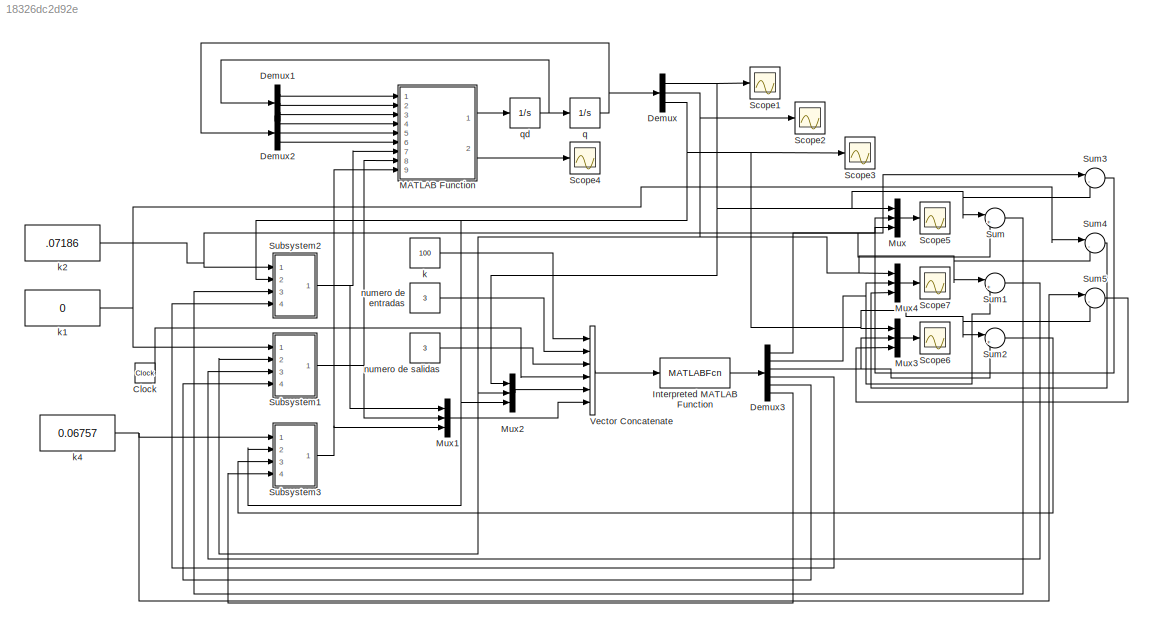
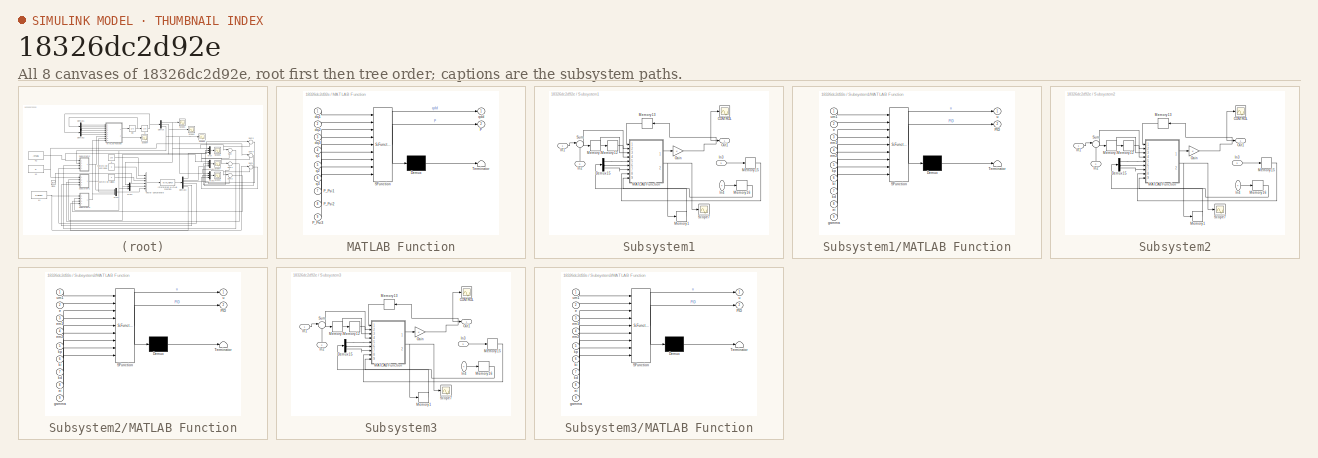
[diagram: thumbnail index - all 8 canvases of the model, root first then tree order]
MODEL slx_18326dc2d92e
KIND model
CONFIG AbsTol = auto
CONFIG EnableMultiTasking = on
CONFIG FixedStep = .01
CONFIG MaxStep = .001
CONFIG MinStep = auto
CONFIG RelTol = 1e-3
CONFIG SampleTimeConstraint = Unconstrained
CONFIG Solver = ode4
CONFIG SolverName = ode4
CONFIG StartTime = 0.0
CONFIG StopTime = 3
BLOCK [Clock] Clock
  Decimation = 40
BLOCK [Demux] Demux
  DisplayOption = bar
  Outputs = 3
  Ports = [1, 3]
BLOCK [Demux] Demux1
  DisplayOption = bar
  Outputs = 3
  Ports = [1, 3]
BLOCK [Demux] Demux2
  DisplayOption = bar
  Outputs = 3
  Ports = [1, 3]
BLOCK [Demux] Demux3
  DisplayOption = bar
  Outputs = 6
  Ports = [1, 6]
BLOCK [MATLABFcn] Interpreted MATLAB Function
  MATLABFcn = wavenetdinamica
  OutputDimensions = 6
  Ports = [1, 1]
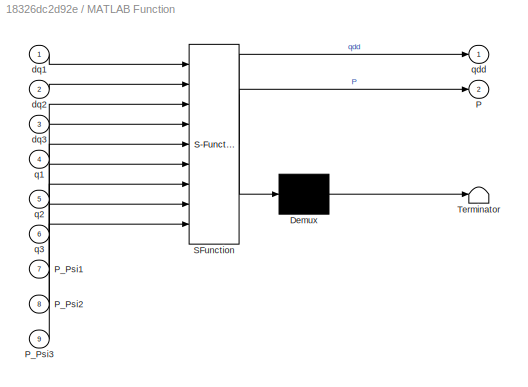
BLOCK [SubSystem] MATLAB Function
  ErrorFcn = Stateflow.Translate.translate
  PermitHierarchicalResolution = ExplicitOnly
  Ports = [9, 2]
  RequestExecContextInheritance = off
  SFBlockType = MATLAB Function
  TreatAsAtomicUnit = on
BLOCK [Demux] MATLAB Function/ Demux 
  Outputs = 1
  Ports = [1, 1]
BLOCK [S-Function] MATLAB Function/ SFunction 
  EnableBusSupport = on
  FunctionName = sf_sfun
  PortCounts = [9 3]
  Ports = [9, 3]
  SFcnIsStateOwnerBlock = off
  SFunctionDeploymentMode = off
  Tag = Stateflow S-Function NNModel 2
BLOCK [Terminator] MATLAB Function/ Terminator 
BLOCK [Outport] MATLAB Function/P
  IconDisplay = Port number
  Port = 2
BLOCK [Inport] MATLAB Function/P_Psi1
  IconDisplay = Port number
  Port = 7
BLOCK [Inport] MATLAB Function/P_Psi2
  IconDisplay = Port number
  Port = 8
BLOCK [Inport] MATLAB Function/P_Psi3
  IconDisplay = Port number
  Port = 9
BLOCK [Inport] MATLAB Function/dq1
  IconDisplay = Port number
BLOCK [Inport] MATLAB Function/dq2
  IconDisplay = Port number
  Port = 2
BLOCK [Inport] MATLAB Function/dq3
  IconDisplay = Port number
  Port = 3
BLOCK [Inport] MATLAB Function/q1
  IconDisplay = Port number
  Port = 4
BLOCK [Inport] MATLAB Function/q2
  IconDisplay = Port number
  Port = 5
BLOCK [Inport] MATLAB Function/q3
  IconDisplay = Port number
  Port = 6
BLOCK [Outport] MATLAB Function/qdd
  IconDisplay = Port number
BLOCK [Mux] Mux
  DisplayOption = bar
  Inputs = 3
  Ports = [3, 1]
BLOCK [Mux] Mux1
  DisplayOption = bar
  Inputs = 3
  Ports = [3, 1]
BLOCK [Mux] Mux2
  DisplayOption = bar
  Inputs = 3
  Ports = [3, 1]
BLOCK [Mux] Mux3
  DisplayOption = bar
  Inputs = 3
  Ports = [3, 1]
BLOCK [Mux] Mux4
  DisplayOption = bar
  Inputs = 3
  Ports = [3, 1]
BLOCK [Scope] Scope1
  Floating = off
  NumInputPorts = 1
  Ports = [1]
  ScopeSpecificationString = Simulink.scopes.TimeScopeBlockCfg('CurrentConfiguration', extmgr.ConfigurationSet(extmgr.Configuration('Core','General UI',true),extmgr.Configuration('Core','Source UI',true),extmgr.Configuration('Sources','WiredSimulink',true,'DataLoggingVariableName','ScopeData1','DataLoggingDecimation','1','DataLoggingDecimateData',true,'DataLoggingSaveFormat','Array'),extmgr.Configuration('Visuals','Time Domai...<+1726ch>
BLOCK [Scope] Scope2
  Floating = off
  NumInputPorts = 1
  Ports = [1]
  ScopeSpecificationString = C++SS(StrPVP('Location','[278, 419, 1922, 719]'),StrPVP('Open','off'),MxPVP('AxesTitles',53,'struct(''axes1'',''%<SignalLabel>'')'),MxPVP('ScopeGraphics',56,'struct(''FigureColor'',''[0.5 0.5 0.5]'',''AxesColor'',''[0 0 0]'',''AxesTickColor'',''[1 1 1]'',''LineColors'',''[1 1 0;1 0 1;0 1 1;1 0 0;0 1 0;0 0 1]'',''LineStyles'',''-|-|-|-|-|-'',''LineWidths'',''[0.5 0.5 0.5 0.5 0.5 0.5]'',''MarkerStyl...<+239ch>
BLOCK [Scope] Scope3
  Floating = off
  NumInputPorts = 1
  Ports = [1]
  ScopeSpecificationString = C++SS(StrPVP('Location','[264, 758, 1911, 1041]'),StrPVP('Open','off'),StrPVP('ZoomMode','yonly'),MxPVP('AxesTitles',53,'struct(''axes1'',''%<SignalLabel>'')'),MxPVP('ScopeGraphics',56,'struct(''FigureColor'',''[0.5 0.5 0.5]'',''AxesColor'',''[0 0 0]'',''AxesTickColor'',''[1 1 1]'',''LineColors'',''[1 1 0;1 0 1;0 1 1;1 0 0;0 1 0;0 0 1]'',''LineStyles'',''-|-|-|-|-|-'',''LineWidths'',''[0.5 0.5 0.5...<+274ch>
BLOCK [Scope] Scope4
  Floating = off
  NumInputPorts = 1
  Ports = [1]
  ScopeSpecificationString = C++SS(StrPVP('Location','[1, 49, 1921, 1049]'),StrPVP('Open','off'),MxPVP('AxesTitles',53,'struct(''axes1'',''%<SignalLabel>'')'),MxPVP('ScopeGraphics',56,'struct(''FigureColor'',''[0.5 0.5 0.5]'',''AxesColor'',''[0 0 0]'',''AxesTickColor'',''[1 1 1]'',''LineColors'',''[1 1 0;1 0 1;0 1 1;1 0 0;0 1 0;0 0 1]'',''LineStyles'',''-|-|-|-|-|-'',''LineWidths'',''[0.5 0.5 0.5 0.5 0.5 0.5]'',''MarkerStyles...<+163ch>
BLOCK [Scope] Scope5
  Floating = off
  NumInputPorts = 1
  Ports = [1]
  ScopeSpecificationString = Simulink.scopes.TimeScopeBlockCfg('CurrentConfiguration', extmgr.ConfigurationSet(extmgr.Configuration('Core','General UI',true),extmgr.Configuration('Core','Source UI',true),extmgr.Configuration('Sources','WiredSimulink',true,'DataLogging',true,'DataLoggingVariableName','y1','DataLoggingSaveFormat','Array','DataLoggingDecimation','1','DataLoggingDecimateData',true),extmgr.Configuration('Visuals',...<+1748ch>
BLOCK [Scope] Scope6
  Floating = off
  NumInputPorts = 1
  Ports = [1]
  ScopeSpecificationString = Simulink.scopes.TimeScopeBlockCfg('CurrentConfiguration', extmgr.ConfigurationSet(extmgr.Configuration('Core','General UI',true),extmgr.Configuration('Core','Source UI',true),extmgr.Configuration('Sources','WiredSimulink',true,'DataLogging',true,'DataLoggingVariableName','y3','DataLoggingSaveFormat','Array','DataLoggingDecimation','1','DataLoggingDecimateData',true),extmgr.Configuration('Visuals',...<+1675ch>
BLOCK [Scope] Scope7
  Floating = off
  NumInputPorts = 1
  Ports = [1]
  ScopeSpecificationString = Simulink.scopes.TimeScopeBlockCfg('CurrentConfiguration', extmgr.ConfigurationSet(extmgr.Configuration('Core','General UI',true),extmgr.Configuration('Core','Source UI',true),extmgr.Configuration('Sources','WiredSimulink',true,'DataLogging',true,'DataLoggingVariableName','y','DataLoggingSaveFormat','Array','DataLoggingDecimation','1','DataLoggingDecimateData',true),extmgr.Configuration('Visuals','...<+1752ch>
BLOCK [SubSystem] Subsystem1
  Ports = [4, 1]
  RequestExecContextInheritance = off
BLOCK [Scope] Subsystem1/CONTROL
  Floating = off
  NumInputPorts = 1
  Ports = [1]
  ScopeSpecificationString = Simulink.scopes.TimeScopeBlockCfg('CurrentConfiguration', extmgr.ConfigurationSet(extmgr.Configuration('Core','General UI',true),extmgr.Configuration('Core','Source UI',true),extmgr.Configuration('Sources','WiredSimulink',true,'DataLoggingVariableName','c2','DataLoggingSaveFormat','Array','DataLoggingLimitDataPoints',true,'DataLoggingDecimation','1','DataLoggingDecimateData',true,'DataLogging',tru...<+1658ch>
BLOCK [Demux] Subsystem1/Demux15
  DisplayOption = bar
  Outputs = 3
  Ports = [1, 3]
BLOCK [Gain] Subsystem1/Gain
  OutDataTypeStr = Inherit: Inherit via internal rule
  ParamDataTypeStr = Inherit: Inherit via internal rule
  SaturateOnIntegerOverflow = off
BLOCK [Inport] Subsystem1/In1
  IconDisplay = Port number
BLOCK [Inport] Subsystem1/In2
  IconDisplay = Port number
  Port = 2
BLOCK [Inport] Subsystem1/In3
  IconDisplay = Port number
  Port = 3
BLOCK [Inport] Subsystem1/In4
  IconDisplay = Port number
  Port = 4
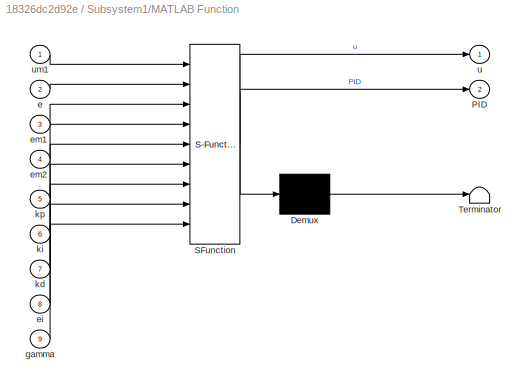
BLOCK [SubSystem] Subsystem1/MATLAB Function
  ErrorFcn = Stateflow.Translate.translate
  PermitHierarchicalResolution = ExplicitOnly
  Ports = [9, 2]
  RequestExecContextInheritance = off
  SFBlockType = MATLAB Function
  TreatAsAtomicUnit = on
BLOCK [Demux] Subsystem1/MATLAB Function/ Demux 
  Outputs = 1
  Ports = [1, 1]
BLOCK [S-Function] Subsystem1/MATLAB Function/ SFunction 
  EnableBusSupport = on
  FunctionName = sf_sfun
  PortCounts = [9 3]
  Ports = [9, 3]
  SFcnIsStateOwnerBlock = off
  SFunctionDeploymentMode = off
  Tag = Stateflow S-Function NNModel 1
BLOCK [Terminator] Subsystem1/MATLAB Function/ Terminator 
BLOCK [Outport] Subsystem1/MATLAB Function/PID
  IconDisplay = Port number
  Port = 2
BLOCK [Inport] Subsystem1/MATLAB Function/e
  IconDisplay = Port number
  Port = 2
BLOCK [Inport] Subsystem1/MATLAB Function/ei
  IconDisplay = Port number
  Port = 8
BLOCK [Inport] Subsystem1/MATLAB Function/em1
  IconDisplay = Port number
  Port = 3
BLOCK [Inport] Subsystem1/MATLAB Function/em2
  IconDisplay = Port number
  Port = 4
BLOCK [Inport] Subsystem1/MATLAB Function/gamma
  IconDisplay = Port number
  Port = 9
BLOCK [Inport] Subsystem1/MATLAB Function/kd
  IconDisplay = Port number
  Port = 7
BLOCK [Inport] Subsystem1/MATLAB Function/ki
  IconDisplay = Port number
  Port = 6
BLOCK [Inport] Subsystem1/MATLAB Function/kp
  IconDisplay = Port number
  Port = 5
BLOCK [Outport] Subsystem1/MATLAB Function/u
  IconDisplay = Port number
BLOCK [Inport] Subsystem1/MATLAB Function/um1
  IconDisplay = Port number
BLOCK [Memory] Subsystem1/Memory1
  InitialCondition = [.1;1;0]
BLOCK [Memory] Subsystem1/Memory11
BLOCK [Memory] Subsystem1/Memory12
BLOCK [Memory] Subsystem1/Memory13
BLOCK [Memory] Subsystem1/Memory15
BLOCK [Memory] Subsystem1/Memory16
BLOCK [Outport] Subsystem1/Out1
  IconDisplay = Port number
BLOCK [Scope] Subsystem1/Scope7
  Floating = off
  NumInputPorts = 1
  Ports = [1]
  ScopeSpecificationString = C++SS(StrPVP('Location','[5, 49, 1371, 737]'),StrPVP('Open','off'),MxPVP('AxesTitles',53,'struct(''axes1'',''%<SignalLabel>'')'),MxPVP('ScopeGraphics',56,'struct(''FigureColor'',''[0.5 0.5 0.5]'',''AxesColor'',''[0 0 0]'',''AxesTickColor'',''[1 1 1]'',''LineColors'',''[1 1 0;1 0 1;0 1 1;1 0 0;0 1 0;0 0 1]'',''LineStyles'',''-|-|-|-|-|-'',''LineWidths'',''[0.5 0.5 0.5 0.5 0.5 0.5]'',''MarkerStyles'...<+241ch>  <repeated x3 — deduplicated; at blocks: Scope7>
BLOCK [Sum] Subsystem1/Sum
  IconShape = round
  InputSameDT = off
  Inputs = |-+
  OutDataTypeStr = Inherit: Inherit via internal rule
  Ports = [2, 1]
  SaturateOnIntegerOverflow = off
BLOCK [SubSystem] Subsystem2
  Ports = [4, 1]
  RequestExecContextInheritance = off
BLOCK [Scope] Subsystem2/CONTROL
  Floating = off
  NumInputPorts = 1
  Ports = [1]
  ScopeSpecificationString = Simulink.scopes.TimeScopeBlockCfg('CurrentConfiguration', extmgr.ConfigurationSet(extmgr.Configuration('Core','General UI',true),extmgr.Configuration('Core','Source UI',true),extmgr.Configuration('Sources','WiredSimulink',true,'DataLoggingVariableName','c1','DataLoggingSaveFormat','Array','DataLoggingLimitDataPoints',true,'DataLoggingDecimation','1','DataLoggingDecimateData',true,'DataLogging',tru...<+1658ch>
BLOCK [Demux] Subsystem2/Demux15
  DisplayOption = bar
  Outputs = 3
  Ports = [1, 3]
BLOCK [Gain] Subsystem2/Gain
  OutDataTypeStr = Inherit: Inherit via internal rule
  ParamDataTypeStr = Inherit: Inherit via internal rule
  SaturateOnIntegerOverflow = off
BLOCK [Inport] Subsystem2/In1
  IconDisplay = Port number
BLOCK [Inport] Subsystem2/In2
  IconDisplay = Port number
  Port = 2
BLOCK [Inport] Subsystem2/In3
  IconDisplay = Port number
  Port = 3
BLOCK [Inport] Subsystem2/In4
  IconDisplay = Port number
  Port = 4
BLOCK [SubSystem] Subsystem2/MATLAB Function
  ErrorFcn = Stateflow.Translate.translate
  PermitHierarchicalResolution = ExplicitOnly
  Ports = [9, 2]
  RequestExecContextInheritance = off
  SFBlockType = MATLAB Function
  TreatAsAtomicUnit = on
BLOCK [Demux] Subsystem2/MATLAB Function/ Demux 
  Outputs = 1
  Ports = [1, 1]
BLOCK [S-Function] Subsystem2/MATLAB Function/ SFunction 
  EnableBusSupport = on
  FunctionName = sf_sfun
  PortCounts = [9 3]
  Ports = [9, 3]
  SFcnIsStateOwnerBlock = off
  SFunctionDeploymentMode = off
  Tag = Stateflow S-Function NNModel 4
BLOCK [Terminator] Subsystem2/MATLAB Function/ Terminator 
BLOCK [Outport] Subsystem2/MATLAB Function/PID
  IconDisplay = Port number
  Port = 2
BLOCK [Inport] Subsystem2/MATLAB Function/e
  IconDisplay = Port number
  Port = 2
BLOCK [Inport] Subsystem2/MATLAB Function/ei
  IconDisplay = Port number
  Port = 8
BLOCK [Inport] Subsystem2/MATLAB Function/em1
  IconDisplay = Port number
  Port = 3
BLOCK [Inport] Subsystem2/MATLAB Function/em2
  IconDisplay = Port number
  Port = 4
BLOCK [Inport] Subsystem2/MATLAB Function/gamma
  IconDisplay = Port number
  Port = 9
BLOCK [Inport] Subsystem2/MATLAB Function/kd
  IconDisplay = Port number
  Port = 7
BLOCK [Inport] Subsystem2/MATLAB Function/ki
  IconDisplay = Port number
  Port = 6
BLOCK [Inport] Subsystem2/MATLAB Function/kp
  IconDisplay = Port number
  Port = 5
BLOCK [Outport] Subsystem2/MATLAB Function/u
  IconDisplay = Port number
BLOCK [Inport] Subsystem2/MATLAB Function/um1
  IconDisplay = Port number
BLOCK [Memory] Subsystem2/Memory1
  InitialCondition = [.1;0;0]
BLOCK [Memory] Subsystem2/Memory11
BLOCK [Memory] Subsystem2/Memory12
BLOCK [Memory] Subsystem2/Memory13
BLOCK [Memory] Subsystem2/Memory15
BLOCK [Memory] Subsystem2/Memory16
BLOCK [Outport] Subsystem2/Out1
  IconDisplay = Port number
BLOCK [Scope] Subsystem2/Scope7
  Floating = off
  NumInputPorts = 1
  Ports = [1]
BLOCK [Sum] Subsystem2/Sum
  IconShape = round
  InputSameDT = off
  Inputs = |-+
  OutDataTypeStr = Inherit: Inherit via internal rule
  Ports = [2, 1]
  SaturateOnIntegerOverflow = off
BLOCK [SubSystem] Subsystem3
  Ports = [4, 1]
  RequestExecContextInheritance = off
BLOCK [Scope] Subsystem3/CONTROL
  Floating = off
  NumInputPorts = 1
  Ports = [1]
  ScopeSpecificationString = Simulink.scopes.TimeScopeBlockCfg('CurrentConfiguration', extmgr.ConfigurationSet(extmgr.Configuration('Core','General UI',true),extmgr.Configuration('Core','Source UI',true),extmgr.Configuration('Sources','WiredSimulink',true,'DataLoggingVariableName','c3','DataLoggingSaveFormat','Array','DataLoggingLimitDataPoints',true,'DataLoggingDecimation','1','DataLoggingDecimateData',true,'DataLogging',tru...<+1658ch>
BLOCK [Demux] Subsystem3/Demux15
  DisplayOption = bar
  Outputs = 3
  Ports = [1, 3]
BLOCK [Gain] Subsystem3/Gain
  OutDataTypeStr = Inherit: Inherit via internal rule
  ParamDataTypeStr = Inherit: Inherit via internal rule
  SaturateOnIntegerOverflow = off
BLOCK [Inport] Subsystem3/In1
  IconDisplay = Port number
BLOCK [Inport] Subsystem3/In2
  IconDisplay = Port number
  Port = 2
BLOCK [Inport] Subsystem3/In3
  IconDisplay = Port number
  Port = 3
BLOCK [Inport] Subsystem3/In4
  IconDisplay = Port number
  Port = 4
BLOCK [SubSystem] Subsystem3/MATLAB Function
  ErrorFcn = Stateflow.Translate.translate
  PermitHierarchicalResolution = ExplicitOnly
  Ports = [9, 2]
  RequestExecContextInheritance = off
  SFBlockType = MATLAB Function
  TreatAsAtomicUnit = on
BLOCK [Demux] Subsystem3/MATLAB Function/ Demux 
  Outputs = 1
  Ports = [1, 1]
BLOCK [S-Function] Subsystem3/MATLAB Function/ SFunction 
  EnableBusSupport = on
  FunctionName = sf_sfun
  PortCounts = [9 3]
  Ports = [9, 3]
  SFcnIsStateOwnerBlock = off
  SFunctionDeploymentMode = off
  Tag = Stateflow S-Function NNModel 3
BLOCK [Terminator] Subsystem3/MATLAB Function/ Terminator 
BLOCK [Outport] Subsystem3/MATLAB Function/PID
  IconDisplay = Port number
  Port = 2
BLOCK [Inport] Subsystem3/MATLAB Function/e
  IconDisplay = Port number
  Port = 2
BLOCK [Inport] Subsystem3/MATLAB Function/ei
  IconDisplay = Port number
  Port = 8
BLOCK [Inport] Subsystem3/MATLAB Function/em1
  IconDisplay = Port number
  Port = 3
BLOCK [Inport] Subsystem3/MATLAB Function/em2
  IconDisplay = Port number
  Port = 4
BLOCK [Inport] Subsystem3/MATLAB Function/gamma
  IconDisplay = Port number
  Port = 9
BLOCK [Inport] Subsystem3/MATLAB Function/kd
  IconDisplay = Port number
  Port = 7
BLOCK [Inport] Subsystem3/MATLAB Function/ki
  IconDisplay = Port number
  Port = 6
BLOCK [Inport] Subsystem3/MATLAB Function/kp
  IconDisplay = Port number
  Port = 5
BLOCK [Outport] Subsystem3/MATLAB Function/u
  IconDisplay = Port number
BLOCK [Inport] Subsystem3/MATLAB Function/um1
  IconDisplay = Port number
BLOCK [Memory] Subsystem3/Memory1
  InitialCondition = [1;0;0]
BLOCK [Memory] Subsystem3/Memory11
BLOCK [Memory] Subsystem3/Memory12
BLOCK [Memory] Subsystem3/Memory13
BLOCK [Memory] Subsystem3/Memory15
BLOCK [Memory] Subsystem3/Memory16
BLOCK [Outport] Subsystem3/Out1
  IconDisplay = Port number
BLOCK [Scope] Subsystem3/Scope7
  Floating = off
  NumInputPorts = 1
  Ports = [1]
BLOCK [Sum] Subsystem3/Sum
  IconShape = round
  InputSameDT = off
  Inputs = |-+
  OutDataTypeStr = Inherit: Inherit via internal rule
  Ports = [2, 1]
  SaturateOnIntegerOverflow = off
BLOCK [Sum] Sum
  IconShape = round
  InputSameDT = off
  Inputs = |+-
  OutDataTypeStr = Inherit: Inherit via internal rule
  Ports = [2, 1]
  SaturateOnIntegerOverflow = off
BLOCK [Sum] Sum1
  IconShape = round
  InputSameDT = off
  Inputs = |+-
  OutDataTypeStr = Inherit: Inherit via internal rule
  Ports = [2, 1]
  SaturateOnIntegerOverflow = off
BLOCK [Sum] Sum2
  IconShape = round
  InputSameDT = off
  Inputs = |+-
  OutDataTypeStr = Inherit: Inherit via internal rule
  Ports = [2, 1]
  SaturateOnIntegerOverflow = off
BLOCK [Sum] Sum3
  IconShape = round
  InputSameDT = off
  Inputs = |-+
  OutDataTypeStr = Inherit: Inherit via internal rule
  Ports = [2, 1]
  SaturateOnIntegerOverflow = off
BLOCK [Sum] Sum4
  IconShape = round
  InputSameDT = off
  Inputs = |-+
  OutDataTypeStr = Inherit: Inherit via internal rule
  Ports = [2, 1]
  SaturateOnIntegerOverflow = off
BLOCK [Sum] Sum5
  IconShape = round
  InputSameDT = off
  Inputs = |-+
  OutDataTypeStr = Inherit: Inherit via internal rule
  Ports = [2, 1]
  SaturateOnIntegerOverflow = off
BLOCK [Concatenate] Vector Concatenate
  NumInputs = 6
  Ports = [6, 1]
BLOCK [Constant] k
  Value = 100
BLOCK [Constant] k1
  Value = 0
BLOCK [Constant] k2
  Value = .07186
BLOCK [Constant] k4
  Value = 0.06757
BLOCK [Constant] numero de entradas
  Value = 3
BLOCK [Constant] numero de salidas
  Value = 3
BLOCK [Integrator] q
  InitialCondition = [0.0718;0;0.0675]
  Ports = [1, 1]
BLOCK [Integrator] qd
  InitialCondition = [0;0;0]
  Ports = [1, 1]
LINE Clock:1 -> Vector Concatenate:4
LINE Demux1:1 -> MATLAB Function:1
LINE Demux1:2 -> MATLAB Function:2
LINE Demux1:3 -> MATLAB Function:3
LINE Demux2:1 -> MATLAB Function:4
LINE Demux2:2 -> MATLAB Function:5
LINE Demux2:3 -> MATLAB Function:6
NET Demux3:1 -> Mux:2, Sum:2
NET Demux3:2 -> Mux4:2, Sum1:2
NET Demux3:3 -> Mux3:2, Sum2:2
LINE Demux3:4 -> Subsystem2:4
LINE Demux3:5 -> Subsystem1:4
LINE Demux3:6 -> Subsystem3:4
NET Demux:1 -> Mux2:1, Mux:1, Scope1:1, Sum3:2, Sum:1
NET Demux:2 -> Mux2:2, Mux4:1, Scope2:1, Subsystem1:2, Sum1:1, Sum4:2
NET Demux:3 -> Mux2:3, Mux3:1, Scope3:1, Subsystem2:2, Subsystem3:2, Sum2:1, Sum5:2
LINE Interpreted MATLAB Function:1 -> Demux3:1
LINE MATLAB Function:1 -> qd:1
LINE MATLAB Function:2 -> Scope4:1
LINE Mux1:1 -> Vector Concatenate:6
LINE Mux2:1 -> Vector Concatenate:5
LINE Mux3:1 -> Scope6:1
LINE Mux4:1 -> Scope7:1
LINE Mux:1 -> Scope5:1
LINE Subsystem1/Demux15:1 -> Subsystem1/MATLAB Function:5
LINE Subsystem1/Demux15:2 -> Subsystem1/MATLAB Function:6
LINE Subsystem1/Demux15:3 -> Subsystem1/MATLAB Function:7
NET Subsystem1/Gain:1 -> Subsystem1/CONTROL:1, Subsystem1/Memory13:1, Subsystem1/Out1:1
LINE Subsystem1/In1:1 -> Subsystem1/Sum:1
LINE Subsystem1/In2:1 -> Subsystem1/Sum:2
LINE Subsystem1/In3:1 -> Subsystem1/Memory15:1
LINE Subsystem1/In4:1 -> Subsystem1/Memory16:1
LINE Subsystem1/MATLAB Function:1 -> Subsystem1/Gain:1
NET Subsystem1/MATLAB Function:2 -> Subsystem1/Memory1:1, Subsystem1/Scope7:1
NET Subsystem1/Memory11:1 -> Subsystem1/MATLAB Function:3, Subsystem1/Memory12:1
LINE Subsystem1/Memory12:1 -> Subsystem1/MATLAB Function:4
LINE Subsystem1/Memory13:1 -> Subsystem1/MATLAB Function:1
LINE Subsystem1/Memory15:1 -> Subsystem1/MATLAB Function:8
LINE Subsystem1/Memory16:1 -> Subsystem1/MATLAB Function:9
LINE Subsystem1/Memory1:1 -> Subsystem1/Demux15:1
NET Subsystem1/Sum:1 -> Subsystem1/MATLAB Function:2, Subsystem1/Memory11:1
NET Subsystem1:1 -> MATLAB Function:8, Mux1:2
LINE Subsystem2/Demux15:1 -> Subsystem2/MATLAB Function:5
LINE Subsystem2/Demux15:2 -> Subsystem2/MATLAB Function:6
LINE Subsystem2/Demux15:3 -> Subsystem2/MATLAB Function:7
NET Subsystem2/Gain:1 -> Subsystem2/CONTROL:1, Subsystem2/Memory13:1, Subsystem2/Out1:1
LINE Subsystem2/In1:1 -> Subsystem2/Sum:1
LINE Subsystem2/In2:1 -> Subsystem2/Sum:2
LINE Subsystem2/In3:1 -> Subsystem2/Memory15:1
LINE Subsystem2/In4:1 -> Subsystem2/Memory16:1
LINE Subsystem2/MATLAB Function:1 -> Subsystem2/Gain:1
NET Subsystem2/MATLAB Function:2 -> Subsystem2/Memory1:1, Subsystem2/Scope7:1
NET Subsystem2/Memory11:1 -> Subsystem2/MATLAB Function:3, Subsystem2/Memory12:1
LINE Subsystem2/Memory12:1 -> Subsystem2/MATLAB Function:4
LINE Subsystem2/Memory13:1 -> Subsystem2/MATLAB Function:1
LINE Subsystem2/Memory15:1 -> Subsystem2/MATLAB Function:8
LINE Subsystem2/Memory16:1 -> Subsystem2/MATLAB Function:9
LINE Subsystem2/Memory1:1 -> Subsystem2/Demux15:1
NET Subsystem2/Sum:1 -> Subsystem2/MATLAB Function:2, Subsystem2/Memory11:1
NET Subsystem2:1 -> MATLAB Function:7, Mux1:1
LINE Subsystem3/Demux15:1 -> Subsystem3/MATLAB Function:5
LINE Subsystem3/Demux15:2 -> Subsystem3/MATLAB Function:6
LINE Subsystem3/Demux15:3 -> Subsystem3/MATLAB Function:7
NET Subsystem3/Gain:1 -> Subsystem3/CONTROL:1, Subsystem3/Memory13:1, Subsystem3/Out1:1
LINE Subsystem3/In1:1 -> Subsystem3/Sum:1
LINE Subsystem3/In2:1 -> Subsystem3/Sum:2
LINE Subsystem3/In3:1 -> Subsystem3/Memory15:1
LINE Subsystem3/In4:1 -> Subsystem3/Memory16:1
LINE Subsystem3/MATLAB Function:1 -> Subsystem3/Gain:1
NET Subsystem3/MATLAB Function:2 -> Subsystem3/Memory1:1, Subsystem3/Scope7:1
NET Subsystem3/Memory11:1 -> Subsystem3/MATLAB Function:3, Subsystem3/Memory12:1
LINE Subsystem3/Memory12:1 -> Subsystem3/MATLAB Function:4
LINE Subsystem3/Memory13:1 -> Subsystem3/MATLAB Function:1
LINE Subsystem3/Memory15:1 -> Subsystem3/MATLAB Function:8
LINE Subsystem3/Memory16:1 -> Subsystem3/MATLAB Function:9
LINE Subsystem3/Memory1:1 -> Subsystem3/Demux15:1
NET Subsystem3/Sum:1 -> Subsystem3/MATLAB Function:2, Subsystem3/Memory11:1
NET Subsystem3:1 -> MATLAB Function:9, Mux1:3
LINE Sum1:1 -> Subsystem1:3
LINE Sum2:1 -> Subsystem3:3
LINE Sum3:1 -> Mux:3
LINE Sum4:1 -> Mux4:3
LINE Sum5:1 -> Mux3:3
LINE Sum:1 -> Subsystem2:3
LINE Vector Concatenate:1 -> Interpreted MATLAB Function:1
NET k1:1 -> Subsystem1:1, Sum4:1
NET k2:1 -> Subsystem2:1, Sum3:1
NET k4:1 -> Subsystem3:1, Sum5:1
LINE k:1 -> Vector Concatenate:1
LINE numero de entradas:1 -> Vector Concatenate:2
LINE numero de salidas:1 -> Vector Concatenate:3
NET q:1 -> Demux2:1, Demux:1
NET qd:1 -> Demux1:1, q:1
note: NET lines group one-source signal fan-out (src -> all destinations, sorted); 1:1 wires keep LINE
CHART Subsystem1/MATLAB Function states=1 transitions=1
  STATE_LABEL 'eML_blk_kernel()'
  STATE_LABEL 'SCRIPT:\nfunction [u, PID] = fcn(um1, e, em1, em2, kp, ki, kd, ei, gamma)\nT=0.01;\nTi=kp/ki;\nTd=kd/kp;\n\nk0=kp*(1+(T/Ti)+(Td/T));\nk1=-kp*(1+2*(Td/T));\nk2=kp*(Td/T);\n\n\nu = um1+ k0*e + k1*em1 + k2*em2;\n\nmiup=.05;\nmiui=.05;\nmiud=1000.555;\n\n% nkp=kp;\n% nki=ki;\n% nkd=kd;\nnkp=kp+miup*ei*gamma*(e-em1)\nnki=ki+miui*ei*gamma*e\nnkd=kd+miud*ei*gamma*(e-2*em1+em2)\n\nPID=[nkp; nki; nkd];'
CHART MATLAB Function states=1 transitions=1
  STATE_LABEL 'eML_blk_kernel()'
  STATE_LABEL "SCRIPT:\nfunction [qdd,P]  = fcn(dq1,dq2,dq3,q1,q2,q3,P_Psi1,P_Psi2,P_Psi3)\n% Parametros \nq = [q1 q2 q3]';\ndq = [dq1 dq2 dq3]';\n\n% Parametros constantes\nl0=0.085;     % Longitud inicial\nrm = 0.008;  % Radio hacia las camaras\nrch = 0.00175;  % Radio de las camaras\nqi = [l0 0 0.05]';\n\n% Variables de deformación\nl=q(1); phi=q(2); k=q(3);\n\n% Presión de Entrada\nfc = 6894.76; % Factor de conversión de Ps...<+930ch>"
CHART Subsystem3/MATLAB Function states=1 transitions=1
  STATE_LABEL 'eML_blk_kernel()'
  STATE_LABEL 'SCRIPT:\nfunction [u, PID] = fcn(um1, e, em1, em2, kp, ki, kd, ei, gamma)\nT=0.01;\nTi=kp/ki;\nTd=kd/kp;\n\nk0=kp*(1+(T/Ti)+(Td/T));\nk1=-kp*(1+2*(Td/T));\nk2=kp*(Td/T);\n\n\nu = um1+ k0*e + k1*em1 + k2*em2;\n\nmiup=.05;\nmiui=.05;\nmiud=.5;\n\n% nkp=kp;\n% nki=ki;\n% nkd=kd;\nnkp=kp+miup*ei*gamma*(e-em1)\nnki=ki+miui*ei*gamma*e\nnkd=kd+miud*ei*gamma*(e-2*em1+em2)\n\nPID=[nkp; nki; nkd];'
CHART Subsystem2/MATLAB Function states=1 transitions=1
  STATE_LABEL 'eML_blk_kernel()'
  STATE_LABEL 'SCRIPT:\nfunction [u, PID] = fcn(um1, e, em1, em2, kp, ki, kd, ei, gamma)\nT=0.01;\nTi=kp/ki;\nTd=kd/kp;\n\nk0=kp*(1+(T/Ti)+(Td/T));\nk1=-kp*(1+2*(Td/T));\nk2=kp*(Td/T);\n\n\nu = um1+ k0*e + k1*em1 + k2*em2;\n\nmiup=.05;\nmiui=.05;\nmiud=.5;\n\n% nkp=kp;\n% nki=ki;\n% nkd=kd;\nnkp=kp+miup*ei*gamma*(e-em1)\nnki=ki+miui*ei*gamma*e\nnkd=kd+miud*ei*gamma*(e-2*em1+em2)\n\nPID=[nkp; nki; nkd];'
